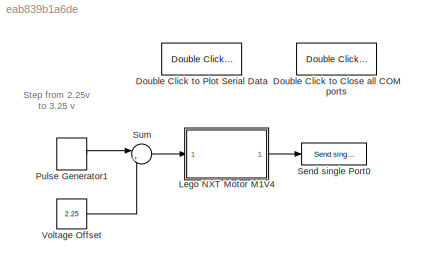
MODEL slx_eab839b1a6de
KIND model
CONFIG AbsTol = auto
CONFIG EnableMultiTasking = on
CONFIG FixedStep = auto
CONFIG MaxStep = auto
CONFIG MinStep = auto
CONFIG RelTol = 1e-3
CONFIG SampleTimeConstraint = Unconstrained
CONFIG Solver = FixedStepAuto
CONFIG SolverName = FixedStepAuto
CONFIG StartTime = 0.0
CONFIG StopTime = 10.0
BLOCK [Reference] Double Click to Close all COM ports  REF=RASPlib/Double Click to
Close all COM ports
  Ports = []
  SourceBlock = RASPlib/Double Click to\nClose all COM ports
BLOCK [Reference] Double Click to Plot Serial Data  REF=RASPlib/Double Click to
Plot Serial Data
  Ports = []
  SourceBlock = RASPlib/Double Click to\nPlot Serial Data
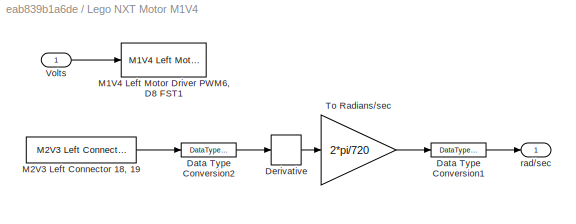
BLOCK [SubSystem] Lego NXT Motor M1V4
  Ports = [1, 1]
  RequestExecContextInheritance = off
  Variant = off
BLOCK [DataTypeConversion] Lego NXT Motor M1V4/Data Type Conversion1
  OutDataTypeStr = single
  RndMeth = Floor
  SaturateOnIntegerOverflow = off
BLOCK [DataTypeConversion] Lego NXT Motor M1V4/Data Type Conversion2
  OutDataTypeStr = double
  RndMeth = Floor
  SaturateOnIntegerOverflow = off
BLOCK [Derivative] Lego NXT Motor M1V4/Derivative
BLOCK [Reference] Lego NXT Motor M1V4/M1V4 Left Motor Driver PWM6, D8 FST1  REF=MinSegLibrary_M2V3/M1V4 Left Motor Driver
PWM6, D8 FST
  Ports = [1]
  SourceBlock = MinSegLibrary_M2V3/M1V4 Left Motor Driver\nPWM6, D8 FST
BLOCK [Reference] Lego NXT Motor M1V4/M2V3 Left Connector 18, 19  REF=MinSegLibrary_M2V3/M2V3 Left Connector 18, 19
  Ports = [0, 1]
  SourceBlock = MinSegLibrary_M2V3/M2V3 Left Connector 18, 19
  SourceType = Encoder_arduino
BLOCK [Gain] Lego NXT Motor M1V4/To Radians//sec
  Gain = 2*pi/720
  OutDataTypeStr = Inherit: Inherit via internal rule
  ParamDataTypeStr = Inherit: Inherit via internal rule
  SaturateOnIntegerOverflow = off
BLOCK [Inport] Lego NXT Motor M1V4/Volts
  IconDisplay = Port number
BLOCK [Outport] Lego NXT Motor M1V4/rad//sec
  IconDisplay = Port number
BLOCK [DiscretePulseGenerator] Pulse Generator1
  Period = 9
  Ports = [0, 1]
  PulseType = Time based
  PulseWidth = 50
BLOCK [Reference] Send single Port0  REF=RASPlib/Send single Port0
  Ports = [1]
  SourceBlock = RASPlib/Send single Port0
  SourceType = SubSystem
BLOCK [Sum] Sum
  IconShape = round
  InputSameDT = off
  Inputs = |++
  OutDataTypeStr = Inherit: Inherit via internal rule
  Ports = [2, 1]
  SaturateOnIntegerOverflow = off
BLOCK [Constant] Voltage Offset
  Value = 2.25
ANNOTATION (root): Step from 2.25v to 3.25 v
LINE Lego NXT Motor M1V4/Data Type Conversion1:1 -> Lego NXT Motor M1V4/rad//sec:1
LINE Lego NXT Motor M1V4/Data Type Conversion2:1 -> Lego NXT Motor M1V4/Derivative:1
LINE Lego NXT Motor M1V4/Derivative:1 -> Lego NXT Motor M1V4/To Radians//sec:1
LINE Lego NXT Motor M1V4/M2V3 Left Connector 18, 19:1 -> Lego NXT Motor M1V4/Data Type Conversion2:1
LINE Lego NXT Motor M1V4/To Radians//sec:1 -> Lego NXT Motor M1V4/Data Type Conversion1:1
LINE Lego NXT Motor M1V4/Volts:1 -> Lego NXT Motor M1V4/M1V4 Left Motor Driver PWM6, D8 FST1:1
LINE Lego NXT Motor M1V4:1 -> Send single Port0:1
LINE Pulse Generator1:1 -> Sum:1
LINE Sum:1 -> Lego NXT Motor M1V4:1
LINE Voltage Offset:1 -> Sum:2
